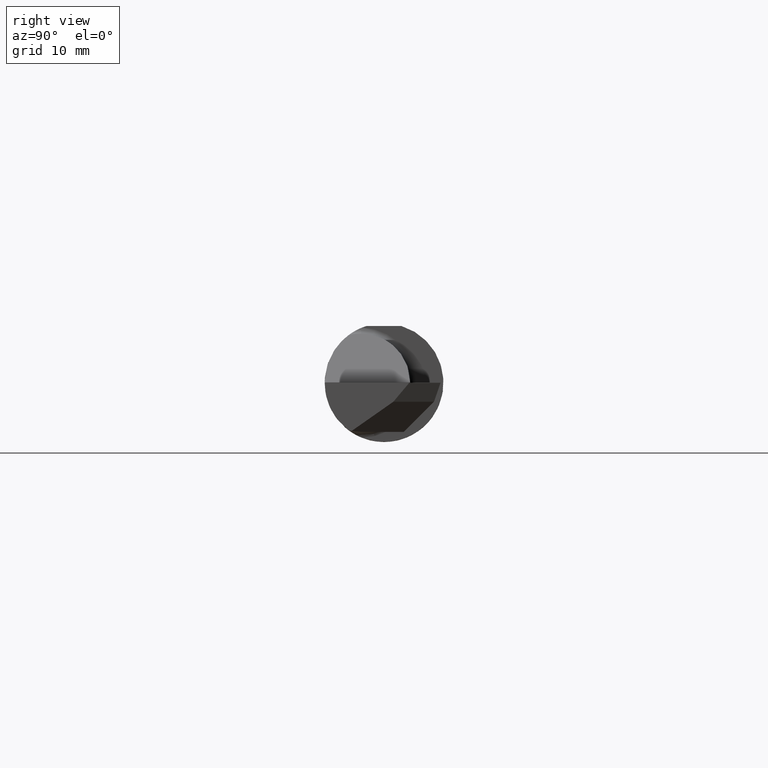
[diagram: clean part render]
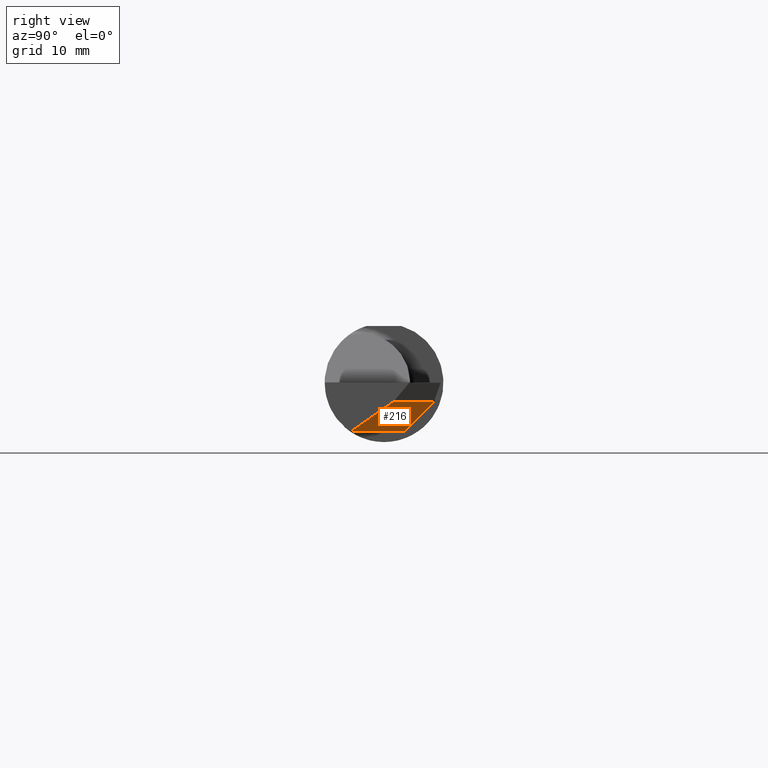
[diagram: same view with one face highlighted and labeled with its STEP entity id]
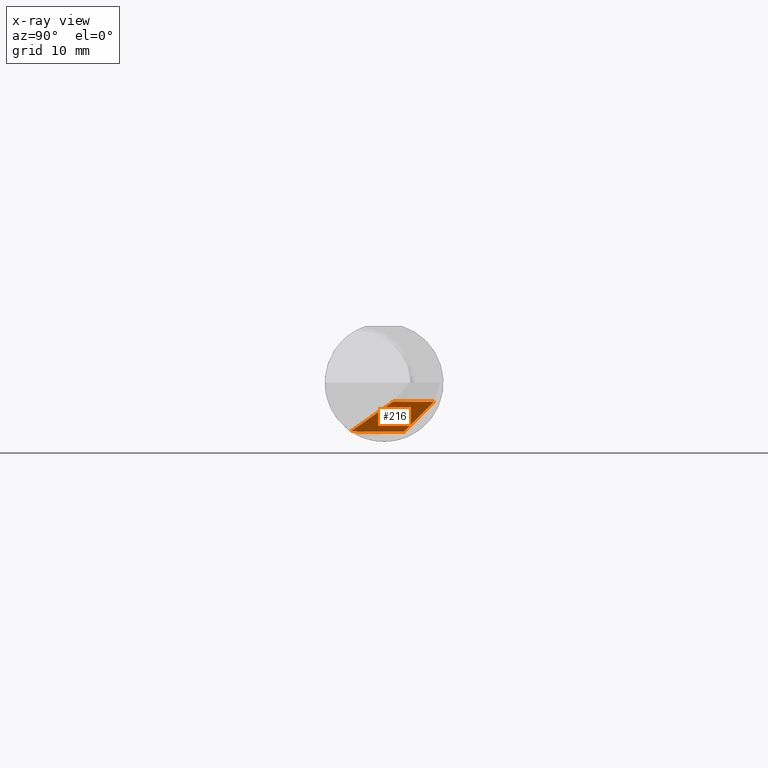
[diagram: x-ray of the same camera — body ghosted, the highlighted face saturated]
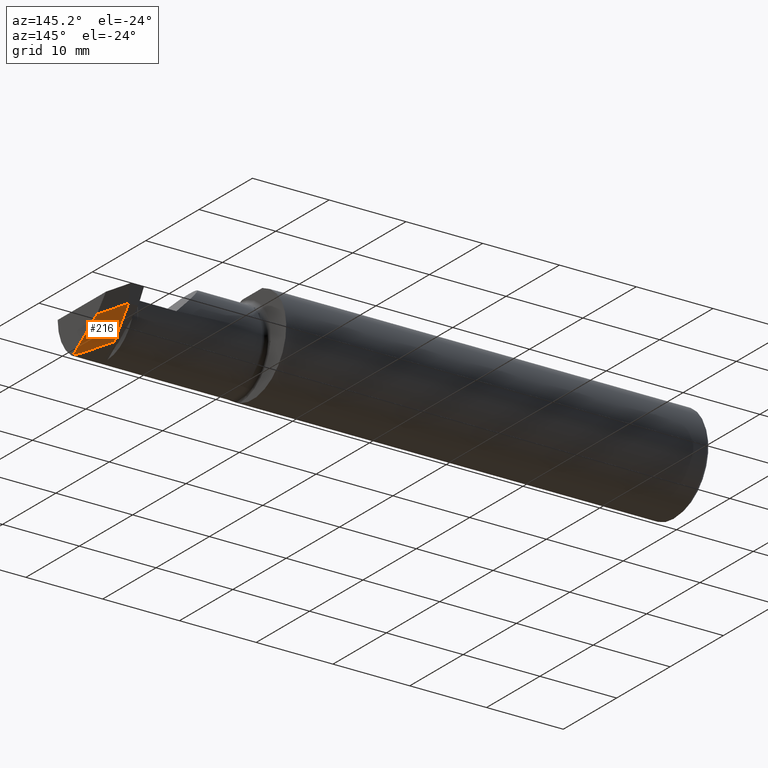
[diagram: same view with one face highlighted and labeled with its STEP entity id]
A machine part, right view. The second image highlights one B-rep face of the part: STEP entity #216.
The next image is the same camera in x-ray: the body ghosted, the highlighted face saturated — about 0% of this face is hidden behind the body in this view.
A second angle (auxiliary view) of the same face is appended — the face is thin or edge-on in the first view.
In plain terms, the highlighted planar face has unit normal (0.9116, 0.2358, -0.3367).
Its self-contained STEP definition (entity closure, byte-faithful):
#17 = CARTESIAN_POINT ( 'NONE',  ( 2.795463962035231287, 0.8304646351436263396, -0.07999999999993467892 ) ) ;
#18 = CARTESIAN_POINT ( 'NONE',  ( 2.941708597587971319, 0.08360379093681984120, -0.2070000000000000173 ) ) ;
#43 = CARTESIAN_POINT ( 'NONE',  ( 2.963839195668921622, 0.2834708276858486364, -0.007132963250968999032 ) ) ;
#69 = DIRECTION ( 'NONE',  ( 0.9116190025285785259, 0.2357607042868696545, -0.3367011798954064883 ) ) ;
#78 = DIRECTION ( 'NONE',  ( -0.000000000000000000, 0.8191520442889890230, 0.5735764363510500452 ) ) ;
#84 = LINE ( 'NONE', #867, #198 ) ;
#99 = ORIENTED_EDGE ( 'NONE', *, *, #572, .F. ) ;
#148 = CARTESIAN_POINT ( 'NONE',  ( 2.988377121087915089, -0.09685000000000006104, -0.2069999999999999341 ) ) ;
#149 = AXIS2_PLACEMENT_3D ( 'NONE', #229, #69, #220 ) ;
#170 = EDGE_CURVE ( 'NONE', #786, #903, #84, .T. ) ;
#198 = VECTOR ( 'NONE', #78, 39.37007874015748143 ) ;
#204 = CARTESIAN_POINT ( 'NONE',  ( 2.995695463954409110, -0.1233308849821205533, -0.2057276898443770319 ) ) ;
#216 = ADVANCED_FACE ( 'NONE', ( #874 ), #652, .T. ) ;
#219 = LINE ( 'NONE', #17, #723 ) ;
#220 = DIRECTION ( 'NONE',  ( -0.3464677099351625156, 0.000000000000000000, -0.9380618987957479726 ) ) ;
#229 = CARTESIAN_POINT ( 'NONE',  ( 2.935081469452308411, 0.8665721776455894698, 0.3232974061439795599 ) ) ;
#262 = VERTEX_POINT ( 'NONE', #940 ) ;
#271 = CARTESIAN_POINT ( 'NONE',  ( 3.000000000000000444, -0.1363579360798511386, -0.2031947907469834613 ) ) ;
#312 =( BOUNDED_CURVE ( )  B_SPLINE_CURVE ( 3, ( #148, #436, #204, #493 ),
 .UNSPECIFIED., .F., .T. ) 
 B_SPLINE_CURVE_WITH_KNOTS ( ( 4, 4 ),
 ( 0.6108652381980211876, 0.8029030024377840080 ),
 .UNSPECIFIED. ) 
 CURVE ( )  GEOMETRIC_REPRESENTATION_ITEM ( )  RATIONAL_B_SPLINE_CURVE ( ( 1.000000000000000000, 0.9969291518527063634, 0.9969291518527063634, 1.000000000000000000 ) ) 
 REPRESENTATION_ITEM ( '' )  );
#333 = EDGE_CURVE ( 'NONE', #262, #893, #730, .T. ) ;
#365 = CARTESIAN_POINT ( 'NONE',  ( 2.931712946219819926, 0.1222541069740935016, -0.2070000000000000728 ) ) ;
#386 = EDGE_LOOP ( 'NONE', ( #99, #824, #864, #762, #618 ) ) ;
#401 = LINE ( 'NONE', #43, #437 ) ;
#424 = EDGE_CURVE ( 'NONE', #903, #456, #219, .T. ) ;
#436 = CARTESIAN_POINT ( 'NONE',  ( 2.991809236970781605, -0.1101210074274889400, -0.2070000000000000173 ) ) ;
#437 = VECTOR ( 'NONE', #913, 39.37007874015748854 ) ;
#456 = VERTEX_POINT ( 'NONE', #872 ) ;
#493 = CARTESIAN_POINT ( 'NONE',  ( 3.000000000000000444, -0.1363579360798511386, -0.2031947907469834613 ) ) ;
#501 = VECTOR ( 'NONE', #805, 39.37007874015748854 ) ;
#572 = EDGE_CURVE ( 'NONE', #262, #786, #312, .T. ) ;
#618 = ORIENTED_EDGE ( 'NONE', *, *, #170, .F. ) ;
#652 = PLANE ( 'NONE',  #149 ) ;
#716 = EDGE_CURVE ( 'NONE', #893, #456, #401, .T. ) ;
#723 = VECTOR ( 'NONE', #728, 39.37007874015748854 ) ;
#728 = DIRECTION ( 'NONE',  ( -0.2503800040544201244, 0.9681476403781131834, 6.836512086908651752E-14 ) ) ;
#730 = LINE ( 'NONE', #365, #501 ) ;
#762 = ORIENTED_EDGE ( 'NONE', *, *, #424, .F. ) ;
#786 = VERTEX_POINT ( 'NONE', #271 ) ;
#805 = DIRECTION ( 'NONE',  ( -0.2503800040544439387, 0.9681476403781070772, -5.547658068578863584E-16 ) ) ;
#824 = ORIENTED_EDGE ( 'NONE', *, *, #333, .T. ) ;
#825 = CARTESIAN_POINT ( 'NONE',  ( 2.999999999999999556, 0.03958245876647813882, -0.07999999999999052314 ) ) ;
#864 = ORIENTED_EDGE ( 'NONE', *, *, #716, .T. ) ;
#867 = CARTESIAN_POINT ( 'NONE',  ( 3.000000000000000444, 0.05060993510442450549, -0.07227847794073088972 ) ) ;
#872 = CARTESIAN_POINT ( 'NONE',  ( 2.955770876200778829, 0.2106037909368400074, -0.07999999999997844946 ) ) ;
#874 = FACE_OUTER_BOUND ( 'NONE', #386, .T. ) ;
#893 = VERTEX_POINT ( 'NONE', #18 ) ;
#903 = VERTEX_POINT ( 'NONE', #825 ) ;
#913 = DIRECTION ( 'NONE',  ( 0.07805664651022416189, 0.7049493456751224629, 0.7049493456751303455 ) ) ;
#940 = CARTESIAN_POINT ( 'NONE',  ( 2.988377121087915089, -0.09685000000000006104, -0.2069999999999999341 ) ) ;